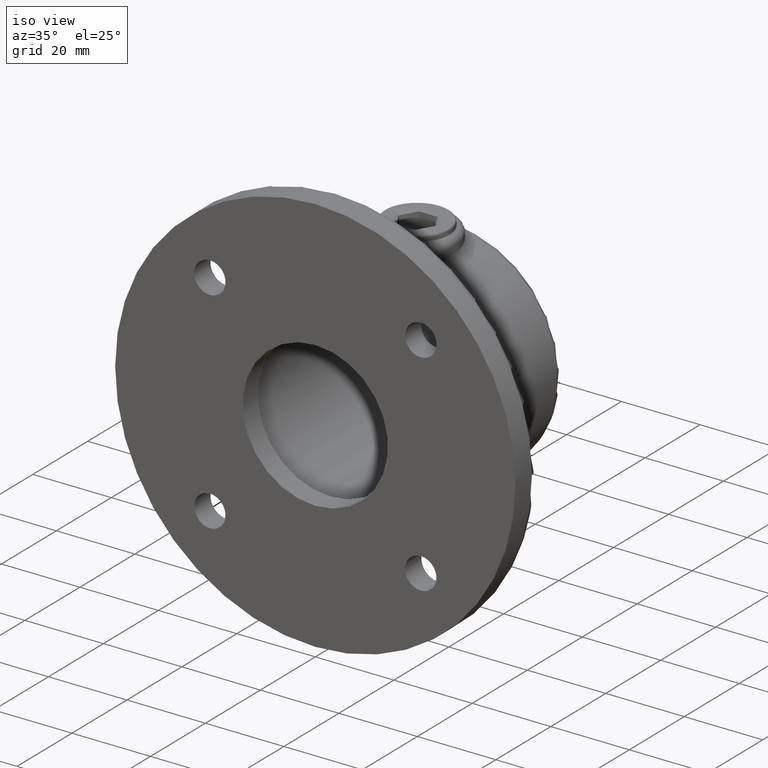
[diagram: clean part render]
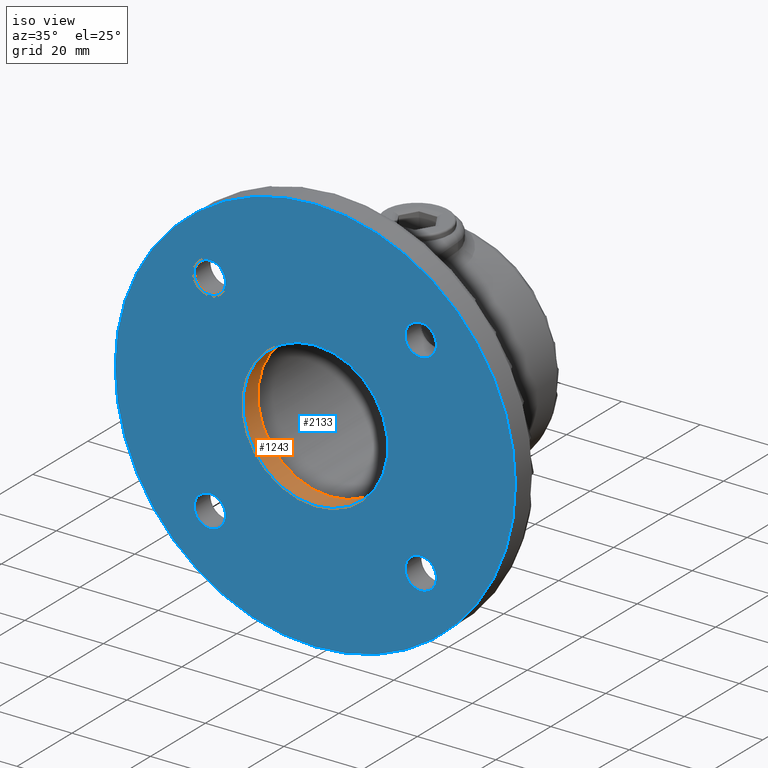
[diagram: same view with the hole feature highlighted: cylindrical wall and planar end face, labeled with their STEP entity ids]
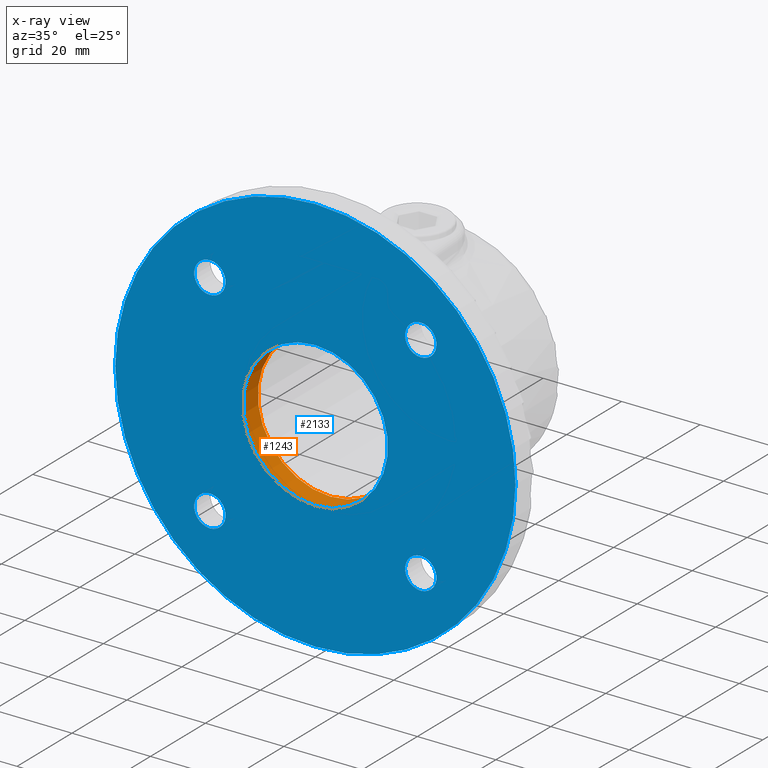
[diagram: x-ray of the same camera — body ghosted, the hole faces saturated]
A machine part, iso view. The highlighted faces form one hole feature of diameter 37 mm: the cylindrical wall (entity #1243, orange) and its adjacent planar end face (entity #2133, blue) — they share a circular edge in the B-rep.
The next image is the same camera in x-ray (body ghosted, the hole faces saturated) — the bore reads through the body.
Wall:
#72 = CARTESIAN_POINT ( 'NONE',  ( 0.000000000000000000, 5.500000000000000000, -18.50000000000000000 ) ) ;
#242 = EDGE_LOOP ( 'NONE', ( #2686 ) ) ;
#262 = CIRCLE ( 'NONE', #823, 18.50000000000000000 ) ;
#288 = EDGE_CURVE ( 'NONE', #2186, #2186, #1519, .T. ) ;
#405 = CYLINDRICAL_SURFACE ( 'NONE', #1762, 18.50000000000000000 ) ;
#630 = DIRECTION ( 'NONE',  ( 0.000000000000000000, -1.000000000000000000, 0.000000000000000000 ) ) ;
#781 = CARTESIAN_POINT ( 'NONE',  ( 0.000000000000000000, 0.000000000000000000, -18.50000000000000000 ) ) ;
#783 = DIRECTION ( 'NONE',  ( 0.000000000000000000, -1.000000000000000000, 0.000000000000000000 ) ) ;
#788 = ORIENTED_EDGE ( 'NONE', *, *, #288, .F. ) ;
#823 = AXIS2_PLACEMENT_3D ( 'NONE', #2459, #630, #1745 ) ;
#875 = DIRECTION ( 'NONE',  ( 0.000000000000000000, 0.000000000000000000, -1.000000000000000000 ) ) ;
#1229 = EDGE_LOOP ( 'NONE', ( #788 ) ) ;
#1243 = ADVANCED_FACE ( 'NONE', ( #2426, #1370 ), #405, .F. ) ;
#1313 = CARTESIAN_POINT ( 'NONE',  ( 0.000000000000000000, 5.500000000000000000, 0.000000000000000000 ) ) ;
#1370 = FACE_OUTER_BOUND ( 'NONE', #242, .T. ) ;
#1519 = CIRCLE ( 'NONE', #1939, 18.50000000000000000 ) ;
#1717 = CARTESIAN_POINT ( 'NONE',  ( 0.000000000000000000, 5.500000000000000000, 0.000000000000000000 ) ) ;
#1745 = DIRECTION ( 'NONE',  ( 0.000000000000000000, 0.000000000000000000, -1.000000000000000000 ) ) ;
#1762 = AXIS2_PLACEMENT_3D ( 'NONE', #1313, #2231, #875 ) ;
#1792 = VERTEX_POINT ( 'NONE', #781 ) ;
#1939 = AXIS2_PLACEMENT_3D ( 'NONE', #1717, #783, #2369 ) ;
#2186 = VERTEX_POINT ( 'NONE', #72 ) ;
#2231 = DIRECTION ( 'NONE',  ( -0.000000000000000000, -1.000000000000000000, -0.000000000000000000 ) ) ;
#2369 = DIRECTION ( 'NONE',  ( 0.000000000000000000, 0.000000000000000000, -1.000000000000000000 ) ) ;
#2426 = FACE_OUTER_BOUND ( 'NONE', #1229, .T. ) ;
#2459 = CARTESIAN_POINT ( 'NONE',  ( 0.000000000000000000, 0.000000000000000000, 0.000000000000000000 ) ) ;
#2481 = EDGE_CURVE ( 'NONE', #1792, #1792, #262, .T. ) ;
#2686 = ORIENTED_EDGE ( 'NONE', *, *, #2481, .T. ) ;
End face:
#108 = EDGE_CURVE ( 'NONE', #731, #731, #863, .T. ) ;
#151 = AXIS2_PLACEMENT_3D ( 'NONE', #2696, #1075, #1570 ) ;
#153 = VERTEX_POINT ( 'NONE', #1039 ) ;
#176 = DIRECTION ( 'NONE',  ( 0.000000000000000000, -0.000000000000000000, 1.000000000000000000 ) ) ;
#254 = FACE_BOUND ( 'NONE', #1810, .T. ) ;
#262 = CIRCLE ( 'NONE', #823, 18.50000000000000000 ) ;
#275 = ORIENTED_EDGE ( 'NONE', *, *, #108, .T. ) ;
#332 = FACE_BOUND ( 'NONE', #1332, .T. ) ;
#355 = CARTESIAN_POINT ( 'NONE',  ( 0.000000000000000000, 0.000000000000000000, 51.00000000000000000 ) ) ;
#385 = AXIS2_PLACEMENT_3D ( 'NONE', #2678, #2243, #176 ) ;
#397 = EDGE_LOOP ( 'NONE', ( #784 ) ) ;
#418 = DIRECTION ( 'NONE',  ( 0.000000000000000000, 1.000000000000000000, 0.000000000000000000 ) ) ;
#560 = VERTEX_POINT ( 'NONE', #355 ) ;
#614 = EDGE_LOOP ( 'NONE', ( #275 ) ) ;
#630 = DIRECTION ( 'NONE',  ( 0.000000000000000000, -1.000000000000000000, 0.000000000000000000 ) ) ;
#731 = VERTEX_POINT ( 'NONE', #958 ) ;
#741 = CARTESIAN_POINT ( 'NONE',  ( -26.87005768508880266, 0.000000000000000000, -22.87005768508879910 ) ) ;
#766 = CIRCLE ( 'NONE', #2646, 3.999999999999996447 ) ;
#781 = CARTESIAN_POINT ( 'NONE',  ( 0.000000000000000000, 0.000000000000000000, -18.50000000000000000 ) ) ;
#784 = ORIENTED_EDGE ( 'NONE', *, *, #880, .T. ) ;
#823 = AXIS2_PLACEMENT_3D ( 'NONE', #2459, #630, #1745 ) ;
#863 = CIRCLE ( 'NONE', #151, 4.000000000000003553 ) ;
#874 = ORIENTED_EDGE ( 'NONE', *, *, #1242, .T. ) ;
#880 = EDGE_CURVE ( 'NONE', #2743, #2743, #2524, .T. ) ;
#881 = EDGE_LOOP ( 'NONE', ( #2473 ) ) ;
#950 = AXIS2_PLACEMENT_3D ( 'NONE', #1978, #418, #1997 ) ;
#958 = CARTESIAN_POINT ( 'NONE',  ( 26.87005768508880266, 0.000000000000000000, 30.87005768508880266 ) ) ;
#964 = DIRECTION ( 'NONE',  ( 0.000000000000000000, 0.000000000000000000, 1.000000000000000000 ) ) ;
#1039 = CARTESIAN_POINT ( 'NONE',  ( -26.87005768508880266, 0.000000000000000000, 30.87005768508880976 ) ) ;
#1075 = DIRECTION ( 'NONE',  ( 0.000000000000000000, 1.000000000000000000, 0.000000000000000000 ) ) ;
#1242 = EDGE_CURVE ( 'NONE', #2355, #2355, #2855, .T. ) ;
#1332 = EDGE_LOOP ( 'NONE', ( #874 ) ) ;
#1341 = FACE_BOUND ( 'NONE', #881, .T. ) ;
#1412 = EDGE_LOOP ( 'NONE', ( #1912 ) ) ;
#1486 = FACE_BOUND ( 'NONE', #397, .T. ) ;
#1540 = DIRECTION ( 'NONE',  ( 0.000000000000000000, 0.000000000000000000, 1.000000000000000000 ) ) ;
#1565 = EDGE_CURVE ( 'NONE', #560, #560, #2118, .T. ) ;
#1570 = DIRECTION ( 'NONE',  ( 0.000000000000000000, 0.000000000000000000, 1.000000000000000000 ) ) ;
#1652 = ORIENTED_EDGE ( 'NONE', *, *, #2805, .T. ) ;
#1657 = DIRECTION ( 'NONE',  ( 0.000000000000000000, 0.000000000000000000, 1.000000000000000000 ) ) ;
#1745 = DIRECTION ( 'NONE',  ( 0.000000000000000000, 0.000000000000000000, -1.000000000000000000 ) ) ;
#1750 = PLANE ( 'NONE',  #385 ) ;
#1792 = VERTEX_POINT ( 'NONE', #781 ) ;
#1810 = EDGE_LOOP ( 'NONE', ( #1652 ) ) ;
#1912 = ORIENTED_EDGE ( 'NONE', *, *, #1565, .F. ) ;
#1978 = CARTESIAN_POINT ( 'NONE',  ( 26.87005768508880266, 0.000000000000000000, -26.87005768508881332 ) ) ;
#1997 = DIRECTION ( 'NONE',  ( 0.000000000000000000, 0.000000000000000000, 1.000000000000000000 ) ) ;
#1999 = FACE_BOUND ( 'NONE', #614, .T. ) ;
#2116 = DIRECTION ( 'NONE',  ( 0.000000000000000000, 1.000000000000000000, 0.000000000000000000 ) ) ;
#2118 = CIRCLE ( 'NONE', #2510, 51.00000000000000000 ) ;
#2133 = ADVANCED_FACE ( 'NONE', ( #254, #1999, #332, #1486, #1341, #2248 ), #1750, .F. ) ;
#2155 = CARTESIAN_POINT ( 'NONE',  ( -26.87005768508880266, 0.000000000000000000, 26.87005768508881332 ) ) ;
#2243 = DIRECTION ( 'NONE',  ( 0.000000000000000000, 1.000000000000000000, 0.000000000000000000 ) ) ;
#2248 = FACE_OUTER_BOUND ( 'NONE', #1412, .T. ) ;
#2306 = DIRECTION ( 'NONE',  ( 0.000000000000000000, 1.000000000000000000, 0.000000000000000000 ) ) ;
#2336 = CARTESIAN_POINT ( 'NONE',  ( -26.87005768508880266, 0.000000000000000000, -26.87005768508880266 ) ) ;
#2355 = VERTEX_POINT ( 'NONE', #2799 ) ;
#2459 = CARTESIAN_POINT ( 'NONE',  ( 0.000000000000000000, 0.000000000000000000, 0.000000000000000000 ) ) ;
#2473 = ORIENTED_EDGE ( 'NONE', *, *, #2481, .F. ) ;
#2481 = EDGE_CURVE ( 'NONE', #1792, #1792, #262, .T. ) ;
#2510 = AXIS2_PLACEMENT_3D ( 'NONE', #2520, #2306, #964 ) ;
#2520 = CARTESIAN_POINT ( 'NONE',  ( 0.000000000000000000, 0.000000000000000000, 0.000000000000000000 ) ) ;
#2524 = CIRCLE ( 'NONE', #2571, 4.000000000000000000 ) ;
#2571 = AXIS2_PLACEMENT_3D ( 'NONE', #2336, #2116, #1657 ) ;
#2646 = AXIS2_PLACEMENT_3D ( 'NONE', #2155, #2647, #1540 ) ;
#2647 = DIRECTION ( 'NONE',  ( 0.000000000000000000, 1.000000000000000000, 0.000000000000000000 ) ) ;
#2678 = CARTESIAN_POINT ( 'NONE',  ( 0.000000000000000000, 0.000000000000000000, 0.000000000000000000 ) ) ;
#2696 = CARTESIAN_POINT ( 'NONE',  ( 26.87005768508880266, 0.000000000000000000, 26.87005768508879910 ) ) ;
#2743 = VERTEX_POINT ( 'NONE', #741 ) ;
#2799 = CARTESIAN_POINT ( 'NONE',  ( 26.87005768508880266, 0.000000000000000000, -22.87005768508880976 ) ) ;
#2805 = EDGE_CURVE ( 'NONE', #153, #153, #766, .T. ) ;
#2855 = CIRCLE ( 'NONE', #950, 4.000000000000003553 ) ;